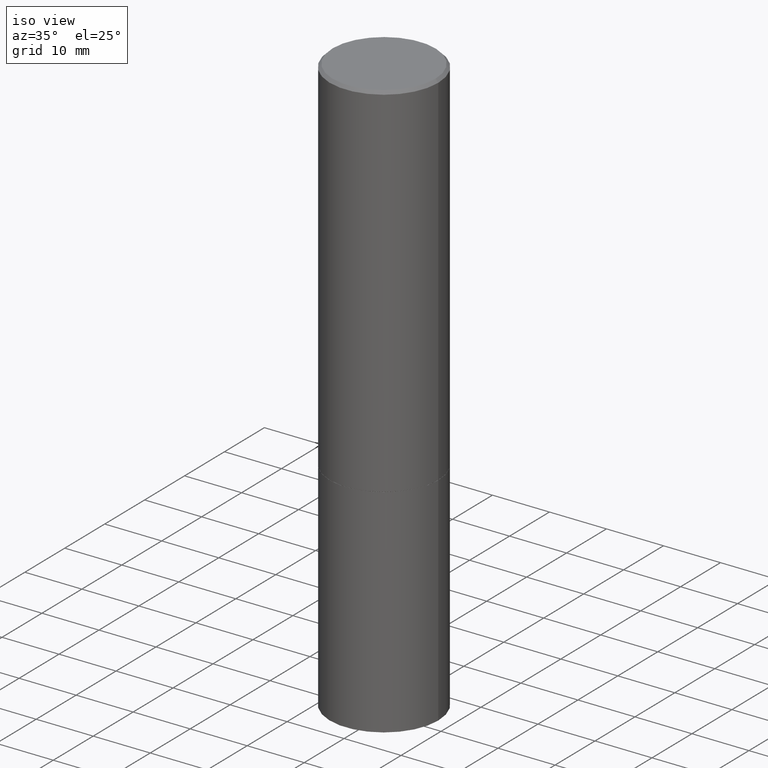
[diagram: clean part render]
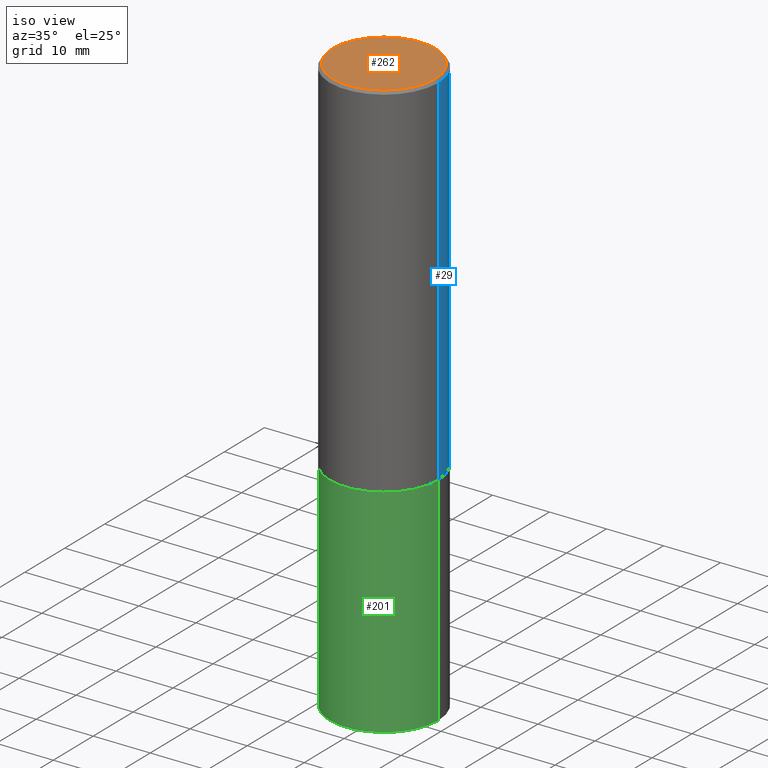
[diagram: same view with three faces highlighted in distinct colors, each labeled with its STEP entity id]
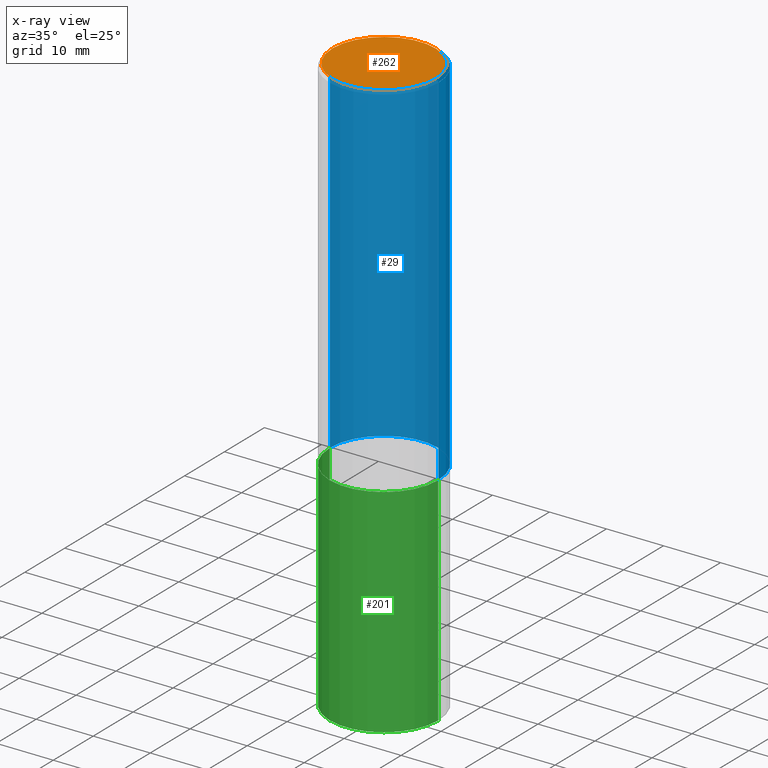
[diagram: x-ray of the same camera — body ghosted, the three highlighted faces saturated]
A machine part, iso view with three faces highlighted in distinct colors.
The next image is the same camera in x-ray (body ghosted, the three faces saturated) — at least one of them is partly hidden behind the body in this view.
Their STEP definitions:

[orange] entity #262 — the highlighted planar face has unit normal (0, -0, -1).
#20 = PLANE ( 'NONE',  #352 ) ;
#23 = CARTESIAN_POINT ( 'NONE',  ( 2.478951750578621842E-15, 0.3549999999999996492, -1.237341619044265047E-15 ) ) ;
#41 = EDGE_LOOP ( 'NONE', ( #95, #208 ) ) ;
#46 = CIRCLE ( 'NONE', #235, 0.3549999999999996492 ) ;
#81 = CARTESIAN_POINT ( 'NONE',  ( -1.043851414335219820E-46, 1.490343170380447200E-32, 4.268512490100411279E-18 ) ) ;
#83 = DIRECTION ( 'NONE',  ( -2.445468806185136597E-29, 3.491481338843145583E-15, 1.000000000000000000 ) ) ;
#95 = ORIENTED_EDGE ( 'NONE', *, *, #152, .T. ) ;
#100 = DIRECTION ( 'NONE',  ( 2.438088387897960049E-29, -3.491481338843145188E-15, -1.000000000000000000 ) ) ;
#102 = EDGE_CURVE ( 'NONE', #325, #267, #46, .T. ) ;
#128 = CARTESIAN_POINT ( 'NONE',  ( 0.3549999999999996492, -2.538996582575038287E-15, 4.268512490117958041E-18 ) ) ;
#137 = CIRCLE ( 'NONE', #357, 0.3549999999999996492 ) ;
#152 = EDGE_CURVE ( 'NONE', #267, #325, #137, .T. ) ;
#196 = DIRECTION ( 'NONE',  ( -2.445468806185136597E-29, 3.491481338843145583E-15, 1.000000000000000000 ) ) ;
#208 = ORIENTED_EDGE ( 'NONE', *, *, #102, .T. ) ;
#217 = FACE_OUTER_BOUND ( 'NONE', #41, .T. ) ;
#235 = AXIS2_PLACEMENT_3D ( 'NONE', #81, #196, #310 ) ;
#262 = ADVANCED_FACE ( 'NONE', ( #217 ), #20, .F. ) ;
#267 = VERTEX_POINT ( 'NONE', #332 ) ;
#307 = DIRECTION ( 'NONE',  ( -1.000000000000000000, 6.982962677686265922E-15, -4.876176775795935793E-29 ) ) ;
#310 = DIRECTION ( 'NONE',  ( 1.000000000000000000, -6.982962677686265922E-15, 4.876231632511992667E-29 ) ) ;
#313 = DIRECTION ( 'NONE',  ( 1.000000000000000000, -6.982962677686265922E-15, 4.876231632511992667E-29 ) ) ;
#325 = VERTEX_POINT ( 'NONE', #128 ) ;
#332 = CARTESIAN_POINT ( 'NONE',  ( -0.3549999999999996492, 2.513866563967053097E-15, 4.268512490082953109E-18 ) ) ;
#340 = CARTESIAN_POINT ( 'NONE',  ( -1.043851414335219820E-46, 1.490343170380447200E-32, 4.268512490100411279E-18 ) ) ;
#352 = AXIS2_PLACEMENT_3D ( 'NONE', #23, #100, #307 ) ;
#357 = AXIS2_PLACEMENT_3D ( 'NONE', #340, #83, #313 ) ;

[blue] entity #29 — the highlighted cylindrical surface (partial cylindrical patch) has radius 9.525 mm, axis along (-0, 0, 1).
#5 = DIRECTION ( 'NONE',  ( -2.445468806185136877E-29, 3.491481338843145188E-15, 1.000000000000000000 ) ) ;
#15 = CIRCLE ( 'NONE', #28, 0.3750000000000000555 ) ;
#28 = AXIS2_PLACEMENT_3D ( 'NONE', #305, #360, #330 ) ;
#29 = ADVANCED_FACE ( 'NONE', ( #140 ), #106, .T. ) ;
#32 = CARTESIAN_POINT ( 'NONE',  ( -0.3749999999999998335, 2.664535259100374514E-15, -1.844600658845588757E-29 ) ) ;
#43 = ORIENTED_EDGE ( 'NONE', *, *, #48, .T. ) ;
#48 = EDGE_CURVE ( 'NONE', #210, #297, #161, .T. ) ;
#62 = VECTOR ( 'NONE', #5, 39.37007874015748143 ) ;
#79 = DIRECTION ( 'NONE',  ( -2.445468806185136597E-29, 3.491481338843145583E-15, 1.000000000000000000 ) ) ;
#85 = CIRCLE ( 'NONE', #131, 0.3749999999999996669 ) ;
#86 = CARTESIAN_POINT ( 'NONE',  ( 0.3749999999999996669, -2.642516375941185662E-15, -0.02000000000000009409 ) ) ;
#97 = ORIENTED_EDGE ( 'NONE', *, *, #238, .F. ) ;
#98 = ORIENTED_EDGE ( 'NONE', *, *, #329, .T. ) ;
#103 = VERTEX_POINT ( 'NONE', #281 ) ;
#106 = CYLINDRICAL_SURFACE ( 'NONE', #250, 0.3749999999999998335 ) ;
#125 = CARTESIAN_POINT ( 'NONE',  ( -0.3749999999999999445, -1.732985487172566723E-15, -2.499000000000000998 ) ) ;
#131 = AXIS2_PLACEMENT_3D ( 'NONE', #311, #283, #253 ) ;
#140 = FACE_OUTER_BOUND ( 'NONE', #236, .T. ) ;
#161 = LINE ( 'NONE', #32, #62 ) ;
#162 = EDGE_CURVE ( 'NONE', #239, #297, #85, .T. ) ;
#197 = VECTOR ( 'NONE', #237, 39.37007874015748143 ) ;
#210 = VERTEX_POINT ( 'NONE', #125 ) ;
#218 = DIRECTION ( 'NONE',  ( 1.000000000000000000, -6.982962677686265922E-15, 4.876176775795935793E-29 ) ) ;
#236 = EDGE_LOOP ( 'NONE', ( #98, #43, #331, #97 ) ) ;
#237 = DIRECTION ( 'NONE',  ( -2.445468806185136877E-29, 3.491481338843145188E-15, 1.000000000000000000 ) ) ;
#238 = EDGE_CURVE ( 'NONE', #103, #239, #269, .T. ) ;
#239 = VERTEX_POINT ( 'NONE', #86 ) ;
#250 = AXIS2_PLACEMENT_3D ( 'NONE', #335, #79, #218 ) ;
#253 = DIRECTION ( 'NONE',  ( 1.000000000000000000, -6.982962677686266711E-15, 0.000000000000000000 ) ) ;
#258 = CARTESIAN_POINT ( 'NONE',  ( 0.3749999999999998335, -2.618611004132348439E-15, 1.828566290923475082E-29 ) ) ;
#269 = LINE ( 'NONE', #258, #197 ) ;
#281 = CARTESIAN_POINT ( 'NONE',  ( 0.3750000000000000555, -1.134382286990137353E-14, -2.499000000000000998 ) ) ;
#283 = DIRECTION ( 'NONE',  ( -2.445468806185136597E-29, 3.491481338843145583E-15, 1.000000000000000000 ) ) ;
#297 = VERTEX_POINT ( 'NONE', #309 ) ;
#305 = CARTESIAN_POINT ( 'NONE',  ( 6.111226546656659252E-29, -8.725211865769023513E-15, -2.499000000000000998 ) ) ;
#309 = CARTESIAN_POINT ( 'NONE',  ( -0.3749999999999996669, 2.548781377355484352E-15, -0.02000000000000009409 ) ) ;
#311 = CARTESIAN_POINT ( 'NONE',  ( 4.890937612370296805E-31, -6.982962677686323656E-17, -0.02000000000000009409 ) ) ;
#329 = EDGE_CURVE ( 'NONE', #103, #210, #15, .T. ) ;
#330 = DIRECTION ( 'NONE',  ( 1.000000000000000000, -6.982962677686264344E-15, 0.000000000000000000 ) ) ;
#331 = ORIENTED_EDGE ( 'NONE', *, *, #162, .F. ) ;
#335 = CARTESIAN_POINT ( 'NONE',  ( 0.000000000000000000, 0.000000000000000000, 0.000000000000000000 ) ) ;
#360 = DIRECTION ( 'NONE',  ( -2.445468806185136597E-29, 3.491481338843145583E-15, 1.000000000000000000 ) ) ;

[green] entity #201 — the highlighted cylindrical surface (partial cylindrical patch) has radius 9.525 mm, axis along (-0, 0, 1).
#2 = CARTESIAN_POINT ( 'NONE',  ( 9.781875224740546387E-29, -1.396592535537258233E-14, -4.000000000000000000 ) ) ;
#7 = DIRECTION ( 'NONE',  ( -2.445468806185136877E-29, 3.491481338843145188E-15, 1.000000000000000000 ) ) ;
#14 = VERTEX_POINT ( 'NONE', #286 ) ;
#33 = CARTESIAN_POINT ( 'NONE',  ( 0.3750000000000000555, -2.618611004132350016E-15, 1.828566290923476203E-29 ) ) ;
#49 = VERTEX_POINT ( 'NONE', #190 ) ;
#66 = CARTESIAN_POINT ( 'NONE',  ( -0.3750000000000000555, 2.664535259100376091E-15, -1.844600658845589598E-29 ) ) ;
#75 = EDGE_LOOP ( 'NONE', ( #146, #150, #126, #101 ) ) ;
#101 = ORIENTED_EDGE ( 'NONE', *, *, #174, .F. ) ;
#108 = DIRECTION ( 'NONE',  ( 1.000000000000000000, -6.982962677686266711E-15, 0.000000000000000000 ) ) ;
#116 = DIRECTION ( 'NONE',  ( -2.445468806185136877E-29, 3.491481338843145188E-15, 1.000000000000000000 ) ) ;
#126 = ORIENTED_EDGE ( 'NONE', *, *, #245, .T. ) ;
#135 = EDGE_CURVE ( 'NONE', #49, #304, #221, .T. ) ;
#141 = CYLINDRICAL_SURFACE ( 'NONE', #192, 0.3750000000000000555 ) ;
#142 = AXIS2_PLACEMENT_3D ( 'NONE', #345, #188, #247 ) ;
#146 = ORIENTED_EDGE ( 'NONE', *, *, #177, .F. ) ;
#150 = ORIENTED_EDGE ( 'NONE', *, *, #135, .T. ) ;
#158 = DIRECTION ( 'NONE',  ( -2.445468806185136597E-29, 3.491481338843145583E-15, 1.000000000000000000 ) ) ;
#166 = VECTOR ( 'NONE', #7, 39.37007874015748143 ) ;
#169 = LINE ( 'NONE', #33, #166 ) ;
#174 = EDGE_CURVE ( 'NONE', #14, #178, #207, .T. ) ;
#175 = DIRECTION ( 'NONE',  ( 1.000000000000000000, -6.982962677686265922E-15, 4.876176775795935793E-29 ) ) ;
#177 = EDGE_CURVE ( 'NONE', #49, #14, #365, .T. ) ;
#178 = VERTEX_POINT ( 'NONE', #230 ) ;
#187 = CARTESIAN_POINT ( 'NONE',  ( 0.3750000000000000555, -1.658453635950493392E-14, -4.000000000000000000 ) ) ;
#188 = DIRECTION ( 'NONE',  ( -2.445468806185136597E-29, 3.491481338843145583E-15, 1.000000000000000000 ) ) ;
#190 = CARTESIAN_POINT ( 'NONE',  ( -0.3750000000000000555, -8.682779092139847151E-15, -4.000000000000000000 ) ) ;
#192 = AXIS2_PLACEMENT_3D ( 'NONE', #348, #204, #175 ) ;
#201 = ADVANCED_FACE ( 'NONE', ( #261 ), #141, .T. ) ;
#204 = DIRECTION ( 'NONE',  ( -2.445468806185136597E-29, 3.491481338843145583E-15, 1.000000000000000000 ) ) ;
#207 = CIRCLE ( 'NONE', #142, 0.3750000000000000555 ) ;
#221 = CIRCLE ( 'NONE', #263, 0.3750000000000000555 ) ;
#230 = CARTESIAN_POINT ( 'NONE',  ( 0.3750000000000000555, -1.134731435124021338E-14, -2.500000000000000000 ) ) ;
#245 = EDGE_CURVE ( 'NONE', #304, #178, #169, .T. ) ;
#247 = DIRECTION ( 'NONE',  ( 1.000000000000000000, -6.982962677686264344E-15, 0.000000000000000000 ) ) ;
#257 = VECTOR ( 'NONE', #116, 39.37007874015748143 ) ;
#261 = FACE_OUTER_BOUND ( 'NONE', #75, .T. ) ;
#263 = AXIS2_PLACEMENT_3D ( 'NONE', #2, #158, #108 ) ;
#286 = CARTESIAN_POINT ( 'NONE',  ( -0.3750000000000000555, -8.682779092139847151E-15, -2.500000000000000000 ) ) ;
#304 = VERTEX_POINT ( 'NONE', #187 ) ;
#345 = CARTESIAN_POINT ( 'NONE',  ( 6.113672015462842613E-29, -8.728703347107864943E-15, -2.500000000000000000 ) ) ;
#348 = CARTESIAN_POINT ( 'NONE',  ( 0.000000000000000000, 0.000000000000000000, 0.000000000000000000 ) ) ;
#365 = LINE ( 'NONE', #66, #257 ) ;